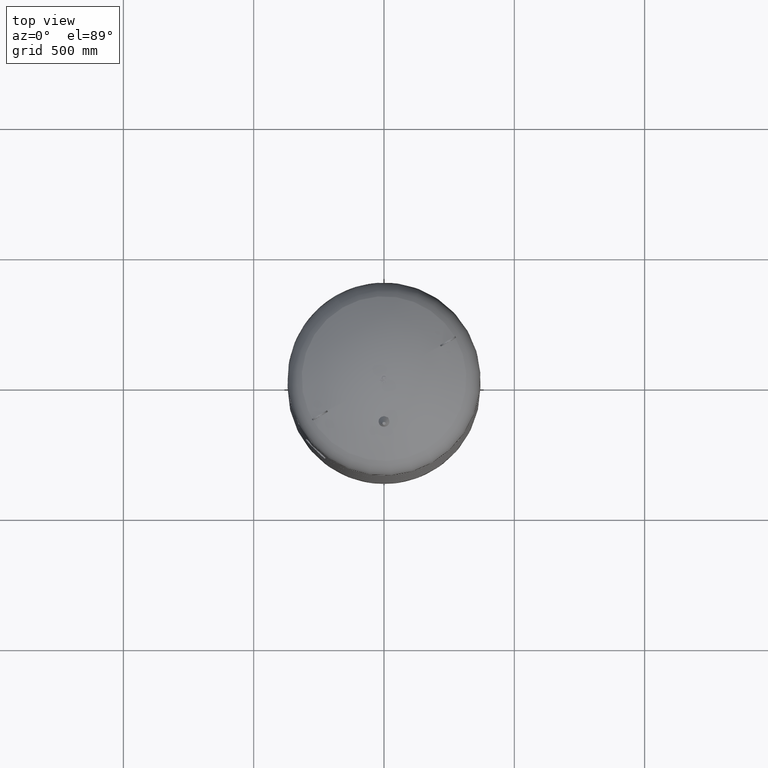
[diagram: clean part render]
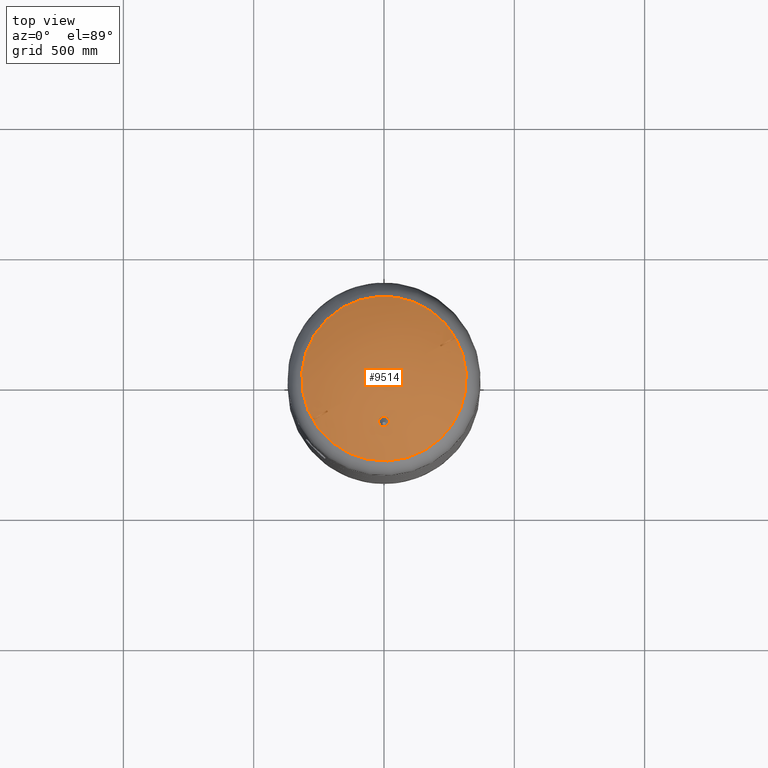
[diagram: same view with one face highlighted and labeled with its STEP entity id]
A machine part, top view. The second image highlights one B-rep face of the part: STEP entity #9514.
In plain terms, the highlighted spherical surface has radius 594 mm.
Its self-contained STEP definition (entity closure, byte-faithful):
#8883=CARTESIAN_POINT('',(157.965517241379270,-273.604301705966460,2482.014494274920300));
#8884=VERTEX_POINT('',#8883);
#8900=CARTESIAN_POINT('',(-157.965517241379250,273.604301705966410,2482.014494274920300));
#8901=VERTEX_POINT('',#8900);
#8909=CARTESIAN_POINT('',(273.604301705966460,157.965517241379250,2482.014494274920300));
#8910=VERTEX_POINT('',#8909);
#8911=CARTESIAN_POINT('',(-1.292814E-015,-2.004580E-014,2482.014494274920300));
#8912=DIRECTION('',(-1.060575E-016,-6.123234E-017,-1.0));
#8913=DIRECTION('',(0.866025403784439,0.500000000000000,-1.224647E-016));
#8914=AXIS2_PLACEMENT_3D('',#8911,#8912,#8913);
#8915=CIRCLE('',#8914,315.931034482758610);
#8916=EDGE_CURVE('',#8901,#8910,#8915,.T.);
#8918=CARTESIAN_POINT('',(-1.292814E-015,-2.004580E-014,2482.014494274920300));
#8919=DIRECTION('',(-1.060575E-016,-6.123234E-017,-1.0));
#8920=DIRECTION('',(0.866025403784439,0.500000000000000,-1.224647E-016));
#8921=AXIS2_PLACEMENT_3D('',#8918,#8919,#8920);
#8922=CIRCLE('',#8921,315.931034482758610);
#8923=EDGE_CURVE('',#8910,#8884,#8922,.T.);
#9059=CARTESIAN_POINT('',(215.032738994050080,127.613311357928240,2517.805868495306200));
#9060=VERTEX_POINT('',#9059);
#9061=CARTESIAN_POINT('',(264.376557238610250,156.101978104269390,2487.500942393024600));
#9062=VERTEX_POINT('',#9061);
#9063=CARTESIAN_POINT('',(-1.499999999995883,2.598076211345996,1979.0));
#9064=DIRECTION('',(-0.500000000000006,0.866025403784435,0.0));
#9065=DIRECTION('',(0.0,0.0,1.0));
#9066=AXIS2_PLACEMENT_3D('',#9063,#9064,#9065);
#9067=CIRCLE('',#9066,593.992424194113820);
#9068=EDGE_CURVE('',#9060,#9062,#9067,.T.);
#9111=CARTESIAN_POINT('',(218.032738994050020,122.417158935221560,2517.805868495306200));
#9112=VERTEX_POINT('',#9111);
#9113=CARTESIAN_POINT('',(81.041876268855148,46.789549079456478,1953.075117590819000));
#9114=DIRECTION('',(-0.834590199910595,-0.481850876581413,0.266981143436978));
#9115=DIRECTION('',(-0.231212452547840,-0.133490571718489,-0.963701753162815));
#9116=AXIS2_PLACEMENT_3D('',#9113,#9114,#9115);
#9117=CIRCLE('',#9116,586.009260046148940);
#9118=EDGE_CURVE('',#9112,#9060,#9117,.T.);
#9182=CARTESIAN_POINT('',(267.376557238610190,150.905825681562790,2487.500942393024600));
#9183=VERTEX_POINT('',#9182);
#9184=CARTESIAN_POINT('',(133.621058863222740,77.146154304085570,1936.255305554289400));
#9185=DIRECTION('',(0.834590199910595,0.481850876581413,-0.266981143436978));
#9186=DIRECTION('',(0.231212452547840,0.133490571718489,0.963701753162815));
#9187=AXIS2_PLACEMENT_3D('',#9184,#9185,#9186);
#9188=CIRCLE('',#9187,572.016411129177530);
#9189=EDGE_CURVE('',#9062,#9183,#9188,.T.);
#9253=CARTESIAN_POINT('',(1.500000000004162,-2.598076211360627,1979.0));
#9254=DIRECTION('',(0.500000000000006,-0.866025403784435,0.0));
#9255=DIRECTION('',(0.0,0.0,-1.0));
#9256=AXIS2_PLACEMENT_3D('',#9253,#9254,#9255);
#9257=CIRCLE('',#9256,593.992424194113710);
#9258=EDGE_CURVE('',#9183,#9112,#9257,.T.);
#9275=CARTESIAN_POINT('',(-215.032738994045760,-127.613311357935440,2517.805868495306200));
#9276=VERTEX_POINT('',#9275);
#9277=CARTESIAN_POINT('',(-264.376557238605870,-156.101978104276610,2487.500942393024600));
#9278=VERTEX_POINT('',#9277);
#9279=CARTESIAN_POINT('',(1.499999999999974,-2.598076211353372,1979.0));
#9280=DIRECTION('',(0.500000000000006,-0.866025403784435,0.0));
#9281=DIRECTION('',(0.0,0.0,-1.0));
#9282=AXIS2_PLACEMENT_3D('',#9279,#9280,#9281);
#9283=CIRCLE('',#9282,593.992424194113820);
#9284=EDGE_CURVE('',#9276,#9278,#9283,.T.);
#9327=CARTESIAN_POINT('',(-218.032738994045790,-122.417158935228780,2517.805868495306200));
#9328=VERTEX_POINT('',#9327);
#9329=CARTESIAN_POINT('',(-81.041876268855106,-46.789549079456712,1953.075117590819000));
#9330=DIRECTION('',(0.834590199910595,0.481850876581413,0.266981143436977));
#9331=DIRECTION('',(-0.231212452547839,-0.133490571718489,0.963701753162815));
#9332=AXIS2_PLACEMENT_3D('',#9329,#9330,#9331);
#9333=CIRCLE('',#9332,586.009260046148940);
#9334=EDGE_CURVE('',#9328,#9276,#9333,.T.);
#9398=CARTESIAN_POINT('',(-267.376557238605810,-150.905825681569980,2487.500942393024600));
#9399=VERTEX_POINT('',#9398);
#9400=CARTESIAN_POINT('',(-133.621058863222710,-77.146154304085812,1936.255305554289400));
#9401=DIRECTION('',(-0.834590199910595,-0.481850876581413,-0.266981143436977));
#9402=DIRECTION('',(0.231212452547839,0.133490571718489,-0.963701753162815));
#9403=AXIS2_PLACEMENT_3D('',#9400,#9401,#9402);
#9404=CIRCLE('',#9403,572.016411129177530);
#9405=EDGE_CURVE('',#9278,#9399,#9404,.T.);
#9469=CARTESIAN_POINT('',(-1.500000000000086,2.598076211353275,1979.0));
#9470=DIRECTION('',(-0.500000000000006,0.866025403784435,0.0));
#9471=DIRECTION('',(0.0,0.0,1.0));
#9472=AXIS2_PLACEMENT_3D('',#9469,#9470,#9471);
#9473=CIRCLE('',#9472,593.992424194113820);
#9474=EDGE_CURVE('',#9399,#9328,#9473,.T.);
#9486=CARTESIAN_POINT('',(-8.440154E-015,-1.308693E-013,1979.0));
#9487=DIRECTION('',(0.500000000000000,-0.866025403784439,1.836970E-016));
#9488=DIRECTION('',(-0.866025403784439,-0.500000000000000,1.224647E-016));
#9489=AXIS2_PLACEMENT_3D('',#9486,#9487,#9488);
#9490=SPHERICAL_SURFACE('',#9489,594.0);
#9491=ORIENTED_EDGE('',*,*,#9118,.T.);
#9492=ORIENTED_EDGE('',*,*,#9068,.T.);
#9493=ORIENTED_EDGE('',*,*,#9189,.T.);
#9494=ORIENTED_EDGE('',*,*,#9258,.T.);
#9495=EDGE_LOOP('',(#9491,#9492,#9493,#9494));
#9496=FACE_OUTER_BOUND('',#9495,.T.);
#9497=ORIENTED_EDGE('',*,*,#9334,.T.);
#9498=ORIENTED_EDGE('',*,*,#9284,.T.);
#9499=ORIENTED_EDGE('',*,*,#9405,.T.);
#9500=ORIENTED_EDGE('',*,*,#9474,.T.);
#9501=EDGE_LOOP('',(#9497,#9498,#9499,#9500));
#9502=FACE_BOUND('',#9501,.T.);
#9503=ORIENTED_EDGE('',*,*,#8923,.F.);
#9504=ORIENTED_EDGE('',*,*,#8916,.F.);
#9505=CARTESIAN_POINT('',(-1.292814E-015,-2.004580E-014,2482.014494274920300));
#9506=DIRECTION('',(-1.060575E-016,-6.123234E-017,-1.0));
#9507=DIRECTION('',(0.866025403784439,0.500000000000000,-1.224647E-016));
#9508=AXIS2_PLACEMENT_3D('',#9505,#9506,#9507);
#9509=CIRCLE('',#9508,315.931034482758610);
#9510=EDGE_CURVE('',#8884,#8901,#9509,.T.);
#9511=ORIENTED_EDGE('',*,*,#9510,.F.);
#9512=EDGE_LOOP('',(#9503,#9504,#9511));
#9513=FACE_BOUND('',#9512,.T.);
#9514=ADVANCED_FACE('',(#9496,#9502,#9513),#9490,.T.);